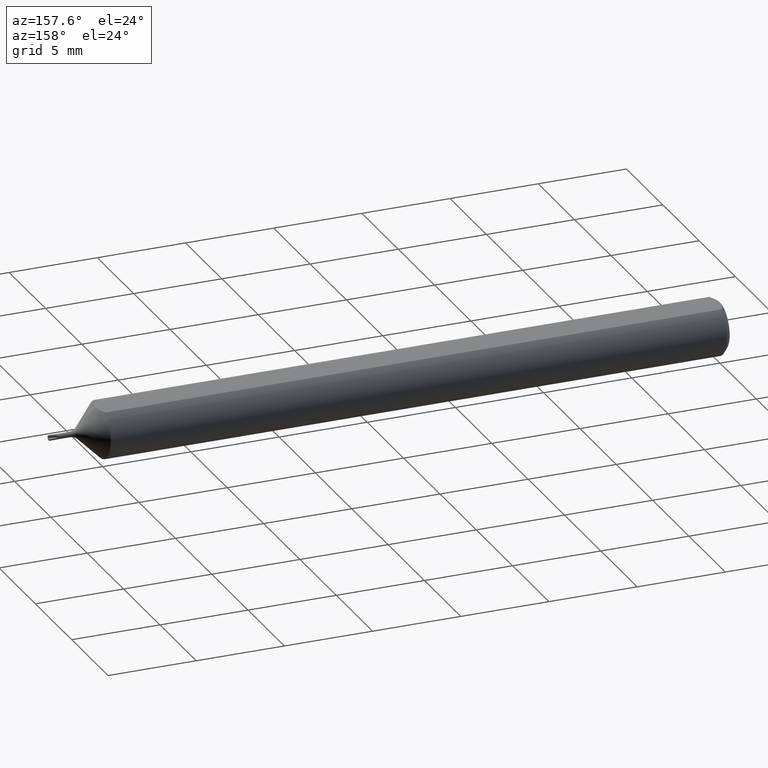
[diagram: clean part render]
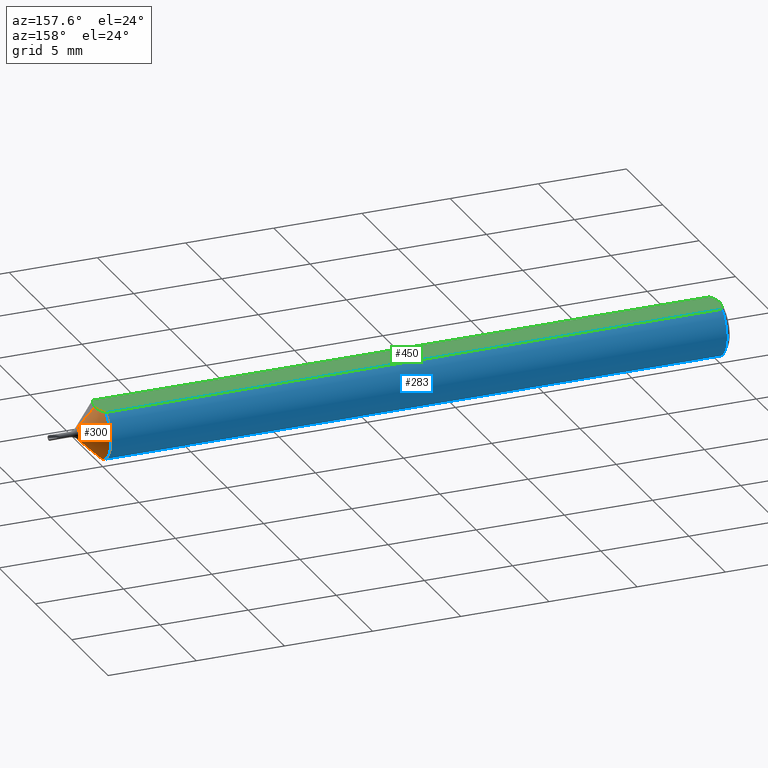
[diagram: same view with three faces highlighted in distinct colors, each labeled with its STEP entity id]
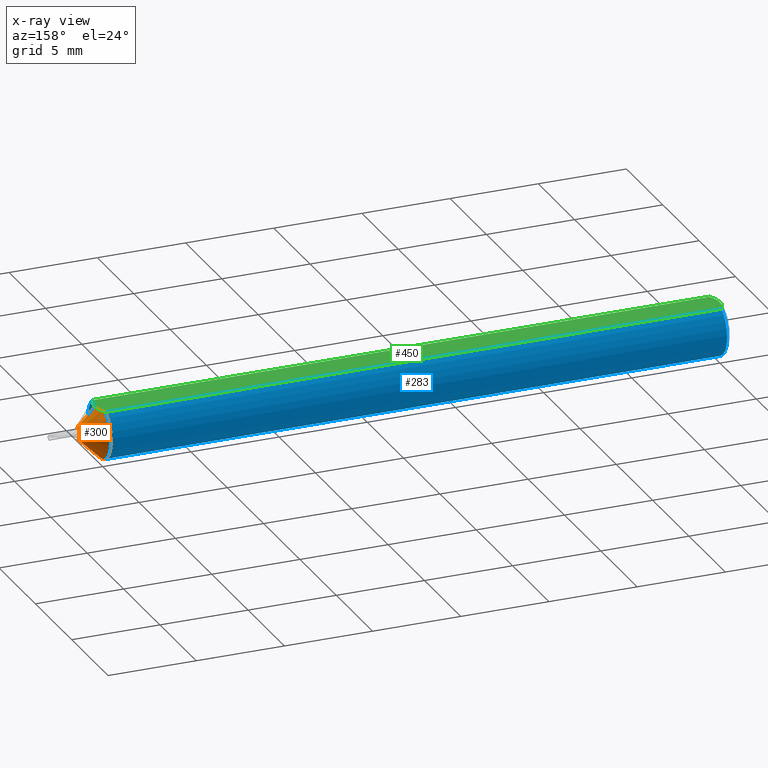
[diagram: x-ray of the same camera — body ghosted, the three highlighted faces saturated]
A machine part, auxiliary view with three faces highlighted in distinct colors.
The next image is the same camera in x-ray (body ghosted, the three faces saturated) — at least one of them is partly hidden behind the body in this view.
Their STEP definitions:

[orange] entity #300 — the highlighted conical surface has half-angle 45 deg.
#7 = CARTESIAN_POINT ( 'NONE',  ( 1.434677669529663691, 0.000000000000000000, 0.01307233047033636367 ) ) ;
#10 = CARTESIAN_POINT ( 'NONE',  ( 1.434677669529663691, 1.600898766789383965E-18, -0.01307233047033636193 ) ) ;
#13 = CARTESIAN_POINT ( 'NONE',  ( 1.434677669529663691, 1.600898766789384158E-18, -0.01307233047033636367 ) ) ;
#35 = CARTESIAN_POINT ( 'NONE',  ( 1.385400000000000187, 7.635672792683749753E-18, -0.06235000000000000958 ) ) ;
#78 = EDGE_CURVE ( 'NONE', #531, #465, #220, .T. ) ;
#86 = ORIENTED_EDGE ( 'NONE', *, *, #229, .T. ) ;
#107 = CONICAL_SURFACE ( 'NONE', #199, 0.01307233047033636367, 0.7853981633974501664 ) ;
#161 = EDGE_LOOP ( 'NONE', ( #86, #309, #572, #297, #374 ) ) ;
#164 = LINE ( 'NONE', #13, #472 ) ;
#175 = CARTESIAN_POINT ( 'NONE',  ( 1.434677669529663691, 0.000000000000000000, 0.01307233047033636193 ) ) ;
#196 = CIRCLE ( 'NONE', #333, 0.06235000000000000264 ) ;
#199 = AXIS2_PLACEMENT_3D ( 'NONE', #388, #618, #373 ) ;
#204 = VERTEX_POINT ( 'NONE', #321 ) ;
#217 = CARTESIAN_POINT ( 'NONE',  ( 1.395400000000000196, 2.856421857282948772E-21, 0.05235000000000001458 ) ) ;
#220 = LINE ( 'NONE', #7, #443 ) ;
#229 = EDGE_CURVE ( 'NONE', #531, #517, #398, .T. ) ;
#237 = DIRECTION ( 'NONE',  ( -1.000000000000000000, 0.000000000000000000, -0.000000000000000000 ) ) ;
#280 = VERTEX_POINT ( 'NONE', #35 ) ;
#285 = DIRECTION ( 'NONE',  ( -1.000000000000000000, 0.000000000000000000, -0.000000000000000000 ) ) ;
#289 = DIRECTION ( 'NONE',  ( 0.000000000000000000, 0.000000000000000000, 1.000000000000000000 ) ) ;
#291 = CARTESIAN_POINT ( 'NONE',  ( 1.385400000000000187, 0.03386738844375220686, 0.05235000000000000070 ) ) ;
#294 = CARTESIAN_POINT ( 'NONE',  ( 1.395400000000000196, 0.005922531291932073109, 0.05235000000000002152 ) ) ;
#297 = ORIENTED_EDGE ( 'NONE', *, *, #389, .T. ) ;
#300 = ADVANCED_FACE ( 'NONE', ( #632 ), #107, .T. ) ;
#304 = CARTESIAN_POINT ( 'NONE',  ( 1.385400000000000187, 0.000000000000000000, 0.000000000000000000 ) ) ;
#309 = ORIENTED_EDGE ( 'NONE', *, *, #467, .T. ) ;
#321 = CARTESIAN_POINT ( 'NONE',  ( 1.385400000000000187, 0.03386738844375220686, 0.05235000000000000070 ) ) ;
#331 = CARTESIAN_POINT ( 'NONE',  ( 1.434677669529663691, 0.000000000000000000, 0.000000000000000000 ) ) ;
#333 = AXIS2_PLACEMENT_3D ( 'NONE', #304, #285, #425 ) ;
#373 = DIRECTION ( 'NONE',  ( 0.000000000000000000, 0.000000000000000000, 1.000000000000000000 ) ) ;
#374 = ORIENTED_EDGE ( 'NONE', *, *, #78, .F. ) ;
#388 = CARTESIAN_POINT ( 'NONE',  ( 1.434677669529663691, 0.000000000000000000, 0.000000000000000000 ) ) ;
#389 = EDGE_CURVE ( 'NONE', #204, #465, #518, .T. ) ;
#398 = CIRCLE ( 'NONE', #416, 0.01307233047033636367 ) ;
#401 = CARTESIAN_POINT ( 'NONE',  ( 1.394329228256927511, 0.01191429133048539819, 0.05235000000000001458 ) ) ;
#411 = DIRECTION ( 'NONE',  ( -0.7071067811865462405, 8.659560562354948882E-17, -0.7071067811865487940 ) ) ;
#416 = AXIS2_PLACEMENT_3D ( 'NONE', #331, #237, #289 ) ;
#425 = DIRECTION ( 'NONE',  ( 0.000000000000000000, 0.000000000000000000, 1.000000000000000000 ) ) ;
#443 = VECTOR ( 'NONE', #497, 39.37007874015748143 ) ;
#465 = VERTEX_POINT ( 'NONE', #217 ) ;
#467 = EDGE_CURVE ( 'NONE', #517, #280, #164, .T. ) ;
#472 = VECTOR ( 'NONE', #411, 39.37007874015748143 ) ;
#484 = CARTESIAN_POINT ( 'NONE',  ( 1.388248785296246401, 0.02862276311588093577, 0.05235000000000002152 ) ) ;
#497 = DIRECTION ( 'NONE',  ( -0.7071067811865462405, 0.000000000000000000, 0.7071067811865487940 ) ) ;
#517 = VERTEX_POINT ( 'NONE', #10 ) ;
#518 = B_SPLINE_CURVE_WITH_KNOTS ( 'NONE', 3,
 ( #291, #484, #585, #401, #294, #594 ),
 .UNSPECIFIED., .F., .F.,
 ( 4, 2, 4 ),
 ( 0.002249050881830898935, 0.002698216203776043591, 0.003147381525721188247 ),
 .UNSPECIFIED. ) ;
#531 = VERTEX_POINT ( 'NONE', #175 ) ;
#572 = ORIENTED_EDGE ( 'NONE', *, *, #612, .F. ) ;
#585 = CARTESIAN_POINT ( 'NONE',  ( 1.390734690915549132, 0.02321458494735058678, 0.05235000000000002152 ) ) ;
#594 = CARTESIAN_POINT ( 'NONE',  ( 1.395400000000000196, 2.856421857282948772E-21, 0.05235000000000001458 ) ) ;
#612 = EDGE_CURVE ( 'NONE', #204, #280, #196, .T. ) ;
#618 = DIRECTION ( 'NONE',  ( -1.000000000000000000, 0.000000000000000000, -0.000000000000000000 ) ) ;
#632 = FACE_OUTER_BOUND ( 'NONE', #161, .T. ) ;

[blue] entity #283 — the highlighted cylindrical surface (edge-blend (fillet) strip) has radius 1.5837 mm, axis along (-1, 0, -0).
#11 = CARTESIAN_POINT ( 'NONE',  ( 0.000000000000000000, -0.03386738844375220686, 0.05235000000000000070 ) ) ;
#25 = LINE ( 'NONE', #279, #163 ) ;
#35 = CARTESIAN_POINT ( 'NONE',  ( 1.385400000000000187, 7.635672792683749753E-18, -0.06235000000000000958 ) ) ;
#38 = DIRECTION ( 'NONE',  ( -1.000000000000000000, 0.000000000000000000, -0.000000000000000000 ) ) ;
#53 = CARTESIAN_POINT ( 'NONE',  ( 0.01000000000000002970, 0.03386738844375217911, 0.05235000000000001458 ) ) ;
#68 = EDGE_CURVE ( 'NONE', #362, #120, #176, .T. ) ;
#75 = CARTESIAN_POINT ( 'NONE',  ( 0.01000000000000002970, 0.000000000000000000, 0.000000000000000000 ) ) ;
#113 = DIRECTION ( 'NONE',  ( -1.000000000000000000, 0.000000000000000000, -0.000000000000000000 ) ) ;
#116 = CIRCLE ( 'NONE', #206, 0.06235000000000000264 ) ;
#120 = VERTEX_POINT ( 'NONE', #605 ) ;
#163 = VECTOR ( 'NONE', #198, 39.37007874015748143 ) ;
#169 = EDGE_CURVE ( 'NONE', #431, #204, #25, .T. ) ;
#176 = LINE ( 'NONE', #11, #344 ) ;
#183 = CARTESIAN_POINT ( 'NONE',  ( 0.01000000000000002970, 0.000000000000000000, 0.000000000000000000 ) ) ;
#191 = DIRECTION ( 'NONE',  ( 1.000000000000000000, 0.000000000000000000, 0.000000000000000000 ) ) ;
#196 = CIRCLE ( 'NONE', #333, 0.06235000000000000264 ) ;
#198 = DIRECTION ( 'NONE',  ( 1.000000000000000000, -0.000000000000000000, 0.000000000000000000 ) ) ;
#204 = VERTEX_POINT ( 'NONE', #321 ) ;
#206 = AXIS2_PLACEMENT_3D ( 'NONE', #75, #520, #626 ) ;
#228 = CYLINDRICAL_SURFACE ( 'NONE', #246, 0.06235000000000000264 ) ;
#240 = FACE_OUTER_BOUND ( 'NONE', #390, .T. ) ;
#242 = DIRECTION ( 'NONE',  ( 0.000000000000000000, 0.000000000000000000, 1.000000000000000000 ) ) ;
#246 = AXIS2_PLACEMENT_3D ( 'NONE', #529, #38, #242 ) ;
#249 = EDGE_CURVE ( 'NONE', #120, #597, #116, .T. ) ;
#252 = ORIENTED_EDGE ( 'NONE', *, *, #68, .T. ) ;
#267 = EDGE_CURVE ( 'NONE', #597, #431, #276, .T. ) ;
#273 = CARTESIAN_POINT ( 'NONE',  ( 0.01000000000000002970, 0.000000000000000000, -0.06235000000000001652 ) ) ;
#276 = CIRCLE ( 'NONE', #493, 0.06235000000000000264 ) ;
#278 = DIRECTION ( 'NONE',  ( 0.000000000000000000, 0.000000000000000000, -1.000000000000000000 ) ) ;
#279 = CARTESIAN_POINT ( 'NONE',  ( 0.000000000000000000, 0.03386738844375220686, 0.05235000000000000070 ) ) ;
#280 = VERTEX_POINT ( 'NONE', #35 ) ;
#283 = ADVANCED_FACE ( 'NONE', ( #240 ), #228, .T. ) ;
#284 = ORIENTED_EDGE ( 'NONE', *, *, #612, .T. ) ;
#285 = DIRECTION ( 'NONE',  ( -1.000000000000000000, 0.000000000000000000, -0.000000000000000000 ) ) ;
#301 = AXIS2_PLACEMENT_3D ( 'NONE', #406, #113, #563 ) ;
#304 = CARTESIAN_POINT ( 'NONE',  ( 1.385400000000000187, 0.000000000000000000, 0.000000000000000000 ) ) ;
#321 = CARTESIAN_POINT ( 'NONE',  ( 1.385400000000000187, 0.03386738844375220686, 0.05235000000000000070 ) ) ;
#333 = AXIS2_PLACEMENT_3D ( 'NONE', #304, #285, #425 ) ;
#338 = CARTESIAN_POINT ( 'NONE',  ( 1.385400000000000187, -0.03386738844375220686, 0.05235000000000000070 ) ) ;
#344 = VECTOR ( 'NONE', #616, 39.37007874015748143 ) ;
#362 = VERTEX_POINT ( 'NONE', #338 ) ;
#390 = EDGE_LOOP ( 'NONE', ( #284, #428, #252, #486, #395, #404 ) ) ;
#395 = ORIENTED_EDGE ( 'NONE', *, *, #267, .T. ) ;
#404 = ORIENTED_EDGE ( 'NONE', *, *, #169, .T. ) ;
#406 = CARTESIAN_POINT ( 'NONE',  ( 1.385400000000000187, 0.000000000000000000, 0.000000000000000000 ) ) ;
#425 = DIRECTION ( 'NONE',  ( 0.000000000000000000, 0.000000000000000000, 1.000000000000000000 ) ) ;
#428 = ORIENTED_EDGE ( 'NONE', *, *, #576, .T. ) ;
#431 = VERTEX_POINT ( 'NONE', #53 ) ;
#486 = ORIENTED_EDGE ( 'NONE', *, *, #249, .T. ) ;
#493 = AXIS2_PLACEMENT_3D ( 'NONE', #183, #191, #278 ) ;
#520 = DIRECTION ( 'NONE',  ( 1.000000000000000000, 0.000000000000000000, 0.000000000000000000 ) ) ;
#529 = CARTESIAN_POINT ( 'NONE',  ( 0.000000000000000000, 0.000000000000000000, 0.000000000000000000 ) ) ;
#563 = DIRECTION ( 'NONE',  ( 0.000000000000000000, 0.000000000000000000, 1.000000000000000000 ) ) ;
#576 = EDGE_CURVE ( 'NONE', #280, #362, #609, .T. ) ;
#597 = VERTEX_POINT ( 'NONE', #273 ) ;
#605 = CARTESIAN_POINT ( 'NONE',  ( 0.01000000000000849862, -0.03386738844395138087, 0.05235000000000001458 ) ) ;
#609 = CIRCLE ( 'NONE', #301, 0.06235000000000000264 ) ;
#612 = EDGE_CURVE ( 'NONE', #204, #280, #196, .T. ) ;
#616 = DIRECTION ( 'NONE',  ( -1.000000000000000000, 0.000000000000000000, -0.000000000000000000 ) ) ;
#626 = DIRECTION ( 'NONE',  ( 0.000000000000000000, 0.000000000000000000, -1.000000000000000000 ) ) ;

[green] entity #450 — the highlighted planar face has unit normal (0, 0, -1).
#11 = CARTESIAN_POINT ( 'NONE',  ( 0.000000000000000000, -0.03386738844375220686, 0.05235000000000000070 ) ) ;
#16 = CARTESIAN_POINT ( 'NONE',  ( 0.001063697276021616971, 0.01189177144351694082, 0.05235000000000001458 ) ) ;
#18 = EDGE_CURVE ( 'NONE', #431, #39, #570, .T. ) ;
#25 = LINE ( 'NONE', #279, #163 ) ;
#39 = VERTEX_POINT ( 'NONE', #564 ) ;
#53 = CARTESIAN_POINT ( 'NONE',  ( 0.01000000000000002970, 0.03386738844375217911, 0.05235000000000001458 ) ) ;
#55 = CARTESIAN_POINT ( 'NONE',  ( 0.01000000000000002970, 0.03386738844375217911, 0.05235000000000001458 ) ) ;
#67 = CARTESIAN_POINT ( 'NONE',  ( 1.395400000000000196, -0.005922649332173337763, 0.05235000000000002152 ) ) ;
#68 = EDGE_CURVE ( 'NONE', #362, #120, #176, .T. ) ;
#106 = EDGE_CURVE ( 'NONE', #465, #362, #132, .T. ) ;
#112 = CARTESIAN_POINT ( 'NONE',  ( -8.222555661594205093E-16, 0.005954997531773998168, 0.05235000000000002152 ) ) ;
#120 = VERTEX_POINT ( 'NONE', #605 ) ;
#124 = CARTESIAN_POINT ( 'NONE',  ( 0.000000000000000000, 0.000000000000000000, 0.05235000000000005621 ) ) ;
#132 = B_SPLINE_CURVE_WITH_KNOTS ( 'NONE', 3,
 ( #215, #67, #213, #410, #415, #271 ),
 .UNSPECIFIED., .F., .F.,
 ( 4, 2, 4 ),
 ( 0.003147381525721188247, 0.003596555799849169080, 0.004045730073977149913 ),
 .UNSPECIFIED. ) ;
#139 = EDGE_CURVE ( 'NONE', #39, #120, #147, .T. ) ;
#147 = B_SPLINE_CURVE_WITH_KNOTS ( 'NONE', 3,
 ( #124, #451, #365, #602, #359, #552 ),
 .UNSPECIFIED., .F., .F.,
 ( 4, 2, 4 ),
 ( 0.001820301466808306933, 0.002269751589840580432, 0.002719201712872853713 ),
 .UNSPECIFIED. ) ;
#155 = ORIENTED_EDGE ( 'NONE', *, *, #106, .F. ) ;
#163 = VECTOR ( 'NONE', #198, 39.37007874015748143 ) ;
#169 = EDGE_CURVE ( 'NONE', #431, #204, #25, .T. ) ;
#176 = LINE ( 'NONE', #11, #344 ) ;
#186 = AXIS2_PLACEMENT_3D ( 'NONE', #449, #270, #268 ) ;
#190 = EDGE_LOOP ( 'NONE', ( #575, #556, #539, #473, #155, #578 ) ) ;
#198 = DIRECTION ( 'NONE',  ( 1.000000000000000000, -0.000000000000000000, 0.000000000000000000 ) ) ;
#201 = FACE_OUTER_BOUND ( 'NONE', #190, .T. ) ;
#204 = VERTEX_POINT ( 'NONE', #321 ) ;
#213 = CARTESIAN_POINT ( 'NONE',  ( 1.394327790335842199, -0.01191871399956039371, 0.05235000000000002152 ) ) ;
#215 = CARTESIAN_POINT ( 'NONE',  ( 1.395400000000000196, 2.856421857282948772E-21, 0.05235000000000001458 ) ) ;
#217 = CARTESIAN_POINT ( 'NONE',  ( 1.395400000000000196, 2.856421857282948772E-21, 0.05235000000000001458 ) ) ;
#257 = CARTESIAN_POINT ( 'NONE',  ( 0.004671770759546971762, 0.02323517832780105929, 0.05235000000000003539 ) ) ;
#268 = DIRECTION ( 'NONE',  ( -1.000000000000000000, 0.000000000000000000, -0.000000000000000000 ) ) ;
#270 = DIRECTION ( 'NONE',  ( 0.000000000000000000, 0.000000000000000000, -1.000000000000000000 ) ) ;
#271 = CARTESIAN_POINT ( 'NONE',  ( 1.385400000000000187, -0.03386738844375220686, 0.05235000000000000070 ) ) ;
#279 = CARTESIAN_POINT ( 'NONE',  ( 0.000000000000000000, 0.03386738844375220686, 0.05235000000000000070 ) ) ;
#291 = CARTESIAN_POINT ( 'NONE',  ( 1.385400000000000187, 0.03386738844375220686, 0.05235000000000000070 ) ) ;
#294 = CARTESIAN_POINT ( 'NONE',  ( 1.395400000000000196, 0.005922531291932073109, 0.05235000000000002152 ) ) ;
#314 = PLANE ( 'NONE',  #186 ) ;
#321 = CARTESIAN_POINT ( 'NONE',  ( 1.385400000000000187, 0.03386738844375220686, 0.05235000000000000070 ) ) ;
#338 = CARTESIAN_POINT ( 'NONE',  ( 1.385400000000000187, -0.03386738844375220686, 0.05235000000000000070 ) ) ;
#344 = VECTOR ( 'NONE', #616, 39.37007874015748143 ) ;
#359 = CARTESIAN_POINT ( 'NONE',  ( 0.007163450771416331880, -0.02864528976632485860, 0.05235000000000002152 ) ) ;
#362 = VERTEX_POINT ( 'NONE', #338 ) ;
#365 = CARTESIAN_POINT ( 'NONE',  ( 0.001055043921644825428, -0.01186408073217191071, 0.05235000000000002152 ) ) ;
#368 = CARTESIAN_POINT ( 'NONE',  ( 0.000000000000000000, 0.000000000000000000, 0.05235000000000005621 ) ) ;
#389 = EDGE_CURVE ( 'NONE', #204, #465, #518, .T. ) ;
#400 = CARTESIAN_POINT ( 'NONE',  ( 0.007185421074056376478, 0.02868573718286559701, 0.05235000000000001458 ) ) ;
#401 = CARTESIAN_POINT ( 'NONE',  ( 1.394329228256927511, 0.01191429133048539819, 0.05235000000000001458 ) ) ;
#410 = CARTESIAN_POINT ( 'NONE',  ( 1.390736344161275229, -0.02320948534756176948, 0.05235000000000001458 ) ) ;
#415 = CARTESIAN_POINT ( 'NONE',  ( 1.388241631301277534, -0.02863593364975394046, 0.05235000000000002152 ) ) ;
#431 = VERTEX_POINT ( 'NONE', #53 ) ;
#449 = CARTESIAN_POINT ( 'NONE',  ( 1.500000000000000222, 0.06235000000000000264, 0.05235000000000001458 ) ) ;
#450 = ADVANCED_FACE ( 'NONE', ( #201 ), #314, .F. ) ;
#451 = CARTESIAN_POINT ( 'NONE',  ( -8.009713622781188960E-16, -0.005965286321711135362, 0.05235000000000002152 ) ) ;
#465 = VERTEX_POINT ( 'NONE', #217 ) ;
#473 = ORIENTED_EDGE ( 'NONE', *, *, #68, .F. ) ;
#484 = CARTESIAN_POINT ( 'NONE',  ( 1.388248785296246401, 0.02862276311588093577, 0.05235000000000002152 ) ) ;
#518 = B_SPLINE_CURVE_WITH_KNOTS ( 'NONE', 3,
 ( #291, #484, #585, #401, #294, #594 ),
 .UNSPECIFIED., .F., .F.,
 ( 4, 2, 4 ),
 ( 0.002249050881830898935, 0.002698216203776043591, 0.003147381525721188247 ),
 .UNSPECIFIED. ) ;
#539 = ORIENTED_EDGE ( 'NONE', *, *, #139, .T. ) ;
#552 = CARTESIAN_POINT ( 'NONE',  ( 0.01000000000000849862, -0.03386738844395138087, 0.05235000000000001458 ) ) ;
#556 = ORIENTED_EDGE ( 'NONE', *, *, #18, .T. ) ;
#564 = CARTESIAN_POINT ( 'NONE',  ( 0.000000000000000000, 0.000000000000000000, 0.05235000000000005621 ) ) ;
#570 = B_SPLINE_CURVE_WITH_KNOTS ( 'NONE', 3,
 ( #55, #400, #257, #16, #112, #368 ),
 .UNSPECIFIED., .F., .F.,
 ( 4, 2, 4 ),
 ( 0.0009229516234079832016, 0.001371626545108145176, 0.001820301466808306933 ),
 .UNSPECIFIED. ) ;
#575 = ORIENTED_EDGE ( 'NONE', *, *, #169, .F. ) ;
#578 = ORIENTED_EDGE ( 'NONE', *, *, #389, .F. ) ;
#585 = CARTESIAN_POINT ( 'NONE',  ( 1.390734690915549132, 0.02321458494735058678, 0.05235000000000002152 ) ) ;
#594 = CARTESIAN_POINT ( 'NONE',  ( 1.395400000000000196, 2.856421857282948772E-21, 0.05235000000000001458 ) ) ;
#602 = CARTESIAN_POINT ( 'NONE',  ( 0.004679365186825886792, -0.02325953974091120660, 0.05235000000000001458 ) ) ;
#605 = CARTESIAN_POINT ( 'NONE',  ( 0.01000000000000849862, -0.03386738844395138087, 0.05235000000000001458 ) ) ;
#616 = DIRECTION ( 'NONE',  ( -1.000000000000000000, 0.000000000000000000, -0.000000000000000000 ) ) ;